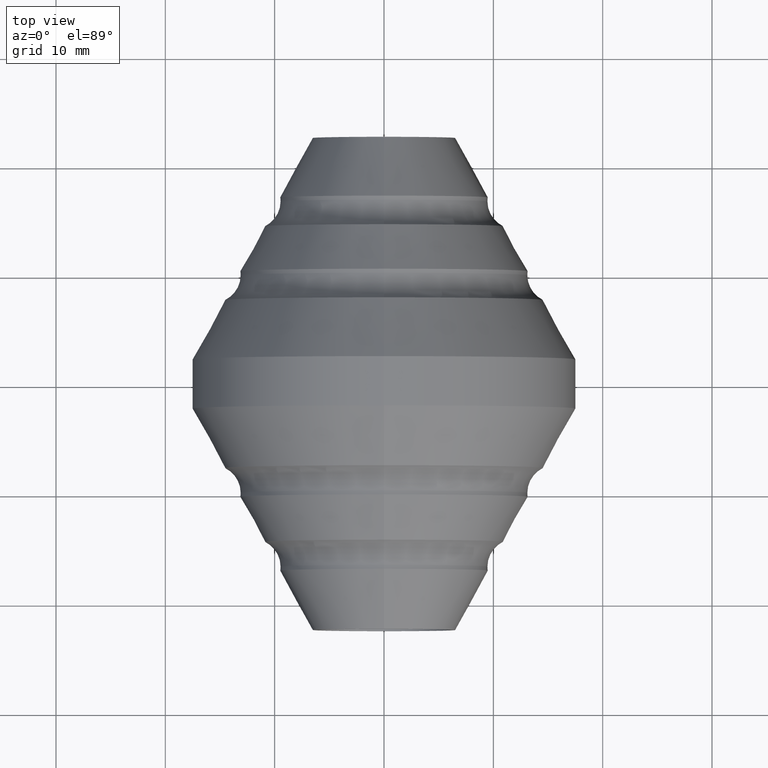
[diagram: clean part render]
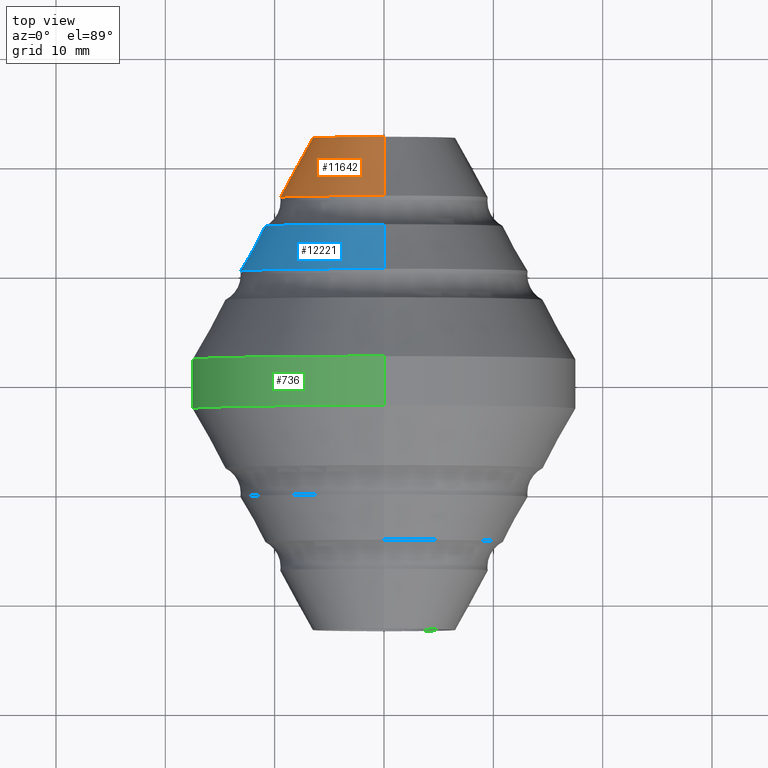
[diagram: same view with three faces highlighted in distinct colors, each labeled with its STEP entity id]
A machine part, top view with three faces highlighted in distinct colors.
Their STEP definitions:

[orange] entity #11642 — the highlighted conical surface has half-angle 28.402 deg.
#40 = CARTESIAN_POINT ( 'NONE',  ( 1.161763639293642018E-15, 17.06944925483278652, 9.486520032571897687 ) ) ;
#154 = CONICAL_SURFACE ( 'NONE', #10936, 9.486520032571897687, 0.4957065921522889052 ) ;
#295 = DIRECTION ( 'NONE',  ( 0.000000000000000000, 0.000000000000000000, -1.000000000000000000 ) ) ;
#711 = CARTESIAN_POINT ( 'NONE',  ( 0.000000000000000000, 22.50000000000000000, -6.549999999999997158 ) ) ;
#1837 = VERTEX_POINT ( 'NONE', #8548 ) ;
#2063 = VERTEX_POINT ( 'NONE', #3587 ) ;
#2959 = VECTOR ( 'NONE', #3431, 999.9999999999998863 ) ;
#3333 = ORIENTED_EDGE ( 'NONE', *, *, #14098, .T. ) ;
#3431 = DIRECTION ( 'NONE',  ( 0.000000000000000000, -0.8796328365551914219, -0.4756533116187334764 ) ) ;
#3587 = CARTESIAN_POINT ( 'NONE',  ( 9.819536463675791713E-16, 22.50000000000000000, 6.549999999999997158 ) ) ;
#3977 = DIRECTION ( 'NONE',  ( 0.000000000000000000, 0.000000000000000000, -1.000000000000000000 ) ) ;
#4341 = DIRECTION ( 'NONE',  ( 0.000000000000000000, 0.000000000000000000, -1.000000000000000000 ) ) ;
#4520 = LINE ( 'NONE', #10136, #2959 ) ;
#4792 = AXIS2_PLACEMENT_3D ( 'NONE', #6930, #13555, #295 ) ;
#4819 = VERTEX_POINT ( 'NONE', #711 ) ;
#5121 = CARTESIAN_POINT ( 'NONE',  ( 0.000000000000000000, 17.06944925483278652, 0.000000000000000000 ) ) ;
#5271 = DIRECTION ( 'NONE',  ( 5.825073055777204253E-17, -0.8796328365551914219, 0.4756533116187334764 ) ) ;
#5525 = AXIS2_PLACEMENT_3D ( 'NONE', #10635, #8259, #3977 ) ;
#5846 = LINE ( 'NONE', #9639, #8098 ) ;
#6930 = CARTESIAN_POINT ( 'NONE',  ( 0.000000000000000000, 22.50000000000000000, 0.000000000000000000 ) ) ;
#6936 = VERTEX_POINT ( 'NONE', #40 ) ;
#7865 = EDGE_CURVE ( 'NONE', #4819, #1837, #4520, .T. ) ;
#8098 = VECTOR ( 'NONE', #5271, 999.9999999999998863 ) ;
#8259 = DIRECTION ( 'NONE',  ( -0.000000000000000000, -1.000000000000000000, -0.000000000000000000 ) ) ;
#8548 = CARTESIAN_POINT ( 'NONE',  ( 0.000000000000000000, 17.06944925483278652, -9.486520032571897687 ) ) ;
#9587 = DIRECTION ( 'NONE',  ( -0.000000000000000000, -1.000000000000000000, -0.000000000000000000 ) ) ;
#9639 = CARTESIAN_POINT ( 'NONE',  ( 1.161763639293642018E-15, 17.06944925483278652, 9.486520032571897687 ) ) ;
#10136 = CARTESIAN_POINT ( 'NONE',  ( 0.000000000000000000, 17.06944925483278652, -9.486520032571897687 ) ) ;
#10635 = CARTESIAN_POINT ( 'NONE',  ( 0.000000000000000000, 17.06944925483278652, 0.000000000000000000 ) ) ;
#10899 = EDGE_CURVE ( 'NONE', #6936, #1837, #13333, .T. ) ;
#10936 = AXIS2_PLACEMENT_3D ( 'NONE', #5121, #9587, #4341 ) ;
#10976 = ORIENTED_EDGE ( 'NONE', *, *, #7865, .T. ) ;
#11437 = FACE_OUTER_BOUND ( 'NONE', #13739, .T. ) ;
#11642 = ADVANCED_FACE ( 'NONE', ( #11437 ), #154, .T. ) ;
#12990 = EDGE_CURVE ( 'NONE', #2063, #6936, #5846, .T. ) ;
#13333 = CIRCLE ( 'NONE', #5525, 9.486520032571897687 ) ;
#13555 = DIRECTION ( 'NONE',  ( -0.000000000000000000, -1.000000000000000000, -0.000000000000000000 ) ) ;
#13619 = CIRCLE ( 'NONE', #4792, 6.549999999999997158 ) ;
#13739 = EDGE_LOOP ( 'NONE', ( #13939, #3333, #10976, #14019 ) ) ;
#13939 = ORIENTED_EDGE ( 'NONE', *, *, #12990, .F. ) ;
#14019 = ORIENTED_EDGE ( 'NONE', *, *, #10899, .F. ) ;
#14098 = EDGE_CURVE ( 'NONE', #2063, #4819, #13619, .T. ) ;

[blue] entity #12221 — the highlighted conical surface has half-angle 28.402 deg.
#221 = ORIENTED_EDGE ( 'NONE', *, *, #5076, .T. ) ;
#693 = VERTEX_POINT ( 'NONE', #7054 ) ;
#859 = CARTESIAN_POINT ( 'NONE',  ( 0.000000000000000000, 10.31944925483278475, 0.000000000000000000 ) ) ;
#922 = ORIENTED_EDGE ( 'NONE', *, *, #2033, .F. ) ;
#1272 = DIRECTION ( 'NONE',  ( -0.000000000000000000, -1.000000000000000000, -0.000000000000000000 ) ) ;
#1790 = LINE ( 'NONE', #8721, #2134 ) ;
#2033 = EDGE_CURVE ( 'NONE', #7990, #11417, #12082, .T. ) ;
#2048 = CONICAL_SURFACE ( 'NONE', #9161, 13.13652003257189804, 0.4957065921522884611 ) ;
#2134 = VECTOR ( 'NONE', #14131, 1000.000000000000000 ) ;
#2815 = VECTOR ( 'NONE', #8691, 1000.000000000000000 ) ;
#3530 = CARTESIAN_POINT ( 'NONE',  ( 0.000000000000000000, 14.43055074516721348, -10.91347996742809734 ) ) ;
#5076 = EDGE_CURVE ( 'NONE', #693, #8017, #5443, .T. ) ;
#5443 = CIRCLE ( 'NONE', #11254, 10.91347996742809734 ) ;
#5776 = LINE ( 'NONE', #6083, #2815 ) ;
#6083 = CARTESIAN_POINT ( 'NONE',  ( 1.608759720982425861E-15, 10.31944925483278475, 13.13652003257189804 ) ) ;
#6282 = EDGE_CURVE ( 'NONE', #693, #7990, #5776, .T. ) ;
#6474 = EDGE_CURVE ( 'NONE', #8017, #11417, #1790, .T. ) ;
#7054 = CARTESIAN_POINT ( 'NONE',  ( 1.472637775974691892E-15, 14.43055074516721348, 10.91347996742809734 ) ) ;
#7981 = AXIS2_PLACEMENT_3D ( 'NONE', #13623, #1272, #13572 ) ;
#7990 = VERTEX_POINT ( 'NONE', #8103 ) ;
#8017 = VERTEX_POINT ( 'NONE', #3530 ) ;
#8103 = CARTESIAN_POINT ( 'NONE',  ( 1.608759720982426058E-15, 10.31944925483278475, 13.13652003257189804 ) ) ;
#8691 = DIRECTION ( 'NONE',  ( 5.825073055777199323E-17, -0.8796328365551916439, 0.4756533116187330323 ) ) ;
#8721 = CARTESIAN_POINT ( 'NONE',  ( 0.000000000000000000, 10.31944925483278475, -13.13652003257189804 ) ) ;
#9161 = AXIS2_PLACEMENT_3D ( 'NONE', #859, #11951, #9718 ) ;
#9403 = DIRECTION ( 'NONE',  ( 0.000000000000000000, 0.000000000000000000, -1.000000000000000000 ) ) ;
#9718 = DIRECTION ( 'NONE',  ( 0.000000000000000000, 0.000000000000000000, -1.000000000000000000 ) ) ;
#9853 = FACE_OUTER_BOUND ( 'NONE', #12100, .T. ) ;
#9922 = ORIENTED_EDGE ( 'NONE', *, *, #6474, .T. ) ;
#11061 = ORIENTED_EDGE ( 'NONE', *, *, #6282, .F. ) ;
#11254 = AXIS2_PLACEMENT_3D ( 'NONE', #11593, #12778, #9403 ) ;
#11417 = VERTEX_POINT ( 'NONE', #13602 ) ;
#11593 = CARTESIAN_POINT ( 'NONE',  ( 0.000000000000000000, 14.43055074516721348, 0.000000000000000000 ) ) ;
#11951 = DIRECTION ( 'NONE',  ( -0.000000000000000000, -1.000000000000000000, -0.000000000000000000 ) ) ;
#12082 = CIRCLE ( 'NONE', #7981, 13.13652003257189804 ) ;
#12100 = EDGE_LOOP ( 'NONE', ( #11061, #221, #9922, #922 ) ) ;
#12221 = ADVANCED_FACE ( 'NONE', ( #9853 ), #2048, .T. ) ;
#12778 = DIRECTION ( 'NONE',  ( -0.000000000000000000, -1.000000000000000000, -0.000000000000000000 ) ) ;
#13572 = DIRECTION ( 'NONE',  ( 0.000000000000000000, 0.000000000000000000, -1.000000000000000000 ) ) ;
#13602 = CARTESIAN_POINT ( 'NONE',  ( 0.000000000000000000, 10.31944925483278475, -13.13652003257189804 ) ) ;
#13623 = CARTESIAN_POINT ( 'NONE',  ( 0.000000000000000000, 10.31944925483278475, 0.000000000000000000 ) ) ;
#14131 = DIRECTION ( 'NONE',  ( 0.000000000000000000, -0.8796328365551916439, -0.4756533116187330323 ) ) ;

[green] entity #736 — the highlighted cylindrical surface (partial cylindrical patch) has radius 17.5 mm, axis along (-0, -1, -0).
#132 = VERTEX_POINT ( 'NONE', #10217 ) ;
#736 = ADVANCED_FACE ( 'NONE', ( #12960 ), #11586, .T. ) ;
#836 = LINE ( 'NONE', #7032, #11404 ) ;
#916 = VERTEX_POINT ( 'NONE', #9804 ) ;
#919 = CARTESIAN_POINT ( 'NONE',  ( 0.000000000000000000, 2.249999999999999556, -17.50000000000000000 ) ) ;
#1491 = LINE ( 'NONE', #7987, #8251 ) ;
#2429 = EDGE_CURVE ( 'NONE', #4870, #916, #1491, .T. ) ;
#2863 = AXIS2_PLACEMENT_3D ( 'NONE', #5191, #4160, #7326 ) ;
#3547 = DIRECTION ( 'NONE',  ( -0.000000000000000000, -1.000000000000000000, -0.000000000000000000 ) ) ;
#4144 = EDGE_CURVE ( 'NONE', #916, #132, #10833, .T. ) ;
#4160 = DIRECTION ( 'NONE',  ( 0.000000000000000000, -1.000000000000000000, 0.000000000000000000 ) ) ;
#4677 = ORIENTED_EDGE ( 'NONE', *, *, #4144, .F. ) ;
#4709 = DIRECTION ( 'NONE',  ( 0.000000000000000000, 0.000000000000000000, -1.000000000000000000 ) ) ;
#4870 = VERTEX_POINT ( 'NONE', #6461 ) ;
#5148 = CARTESIAN_POINT ( 'NONE',  ( 0.000000000000000000, 0.000000000000000000, 0.000000000000000000 ) ) ;
#5191 = CARTESIAN_POINT ( 'NONE',  ( 0.000000000000000000, -2.249999999999999556, 0.000000000000000000 ) ) ;
#6461 = CARTESIAN_POINT ( 'NONE',  ( 2.143131898507868248E-15, 2.249999999999999556, 17.50000000000000000 ) ) ;
#7032 = CARTESIAN_POINT ( 'NONE',  ( 0.000000000000000000, 0.000000000000000000, -17.50000000000000000 ) ) ;
#7326 = DIRECTION ( 'NONE',  ( 0.000000000000000000, 0.000000000000000000, -1.000000000000000000 ) ) ;
#7350 = EDGE_CURVE ( 'NONE', #4870, #11699, #13043, .T. ) ;
#7975 = EDGE_LOOP ( 'NONE', ( #13414, #12233, #12287, #4677 ) ) ;
#7987 = CARTESIAN_POINT ( 'NONE',  ( 2.143131898507868248E-15, 0.000000000000000000, 17.50000000000000000 ) ) ;
#8153 = DIRECTION ( 'NONE',  ( -0.000000000000000000, -1.000000000000000000, -0.000000000000000000 ) ) ;
#8251 = VECTOR ( 'NONE', #10167, 1000.000000000000000 ) ;
#8995 = CARTESIAN_POINT ( 'NONE',  ( 0.000000000000000000, 2.249999999999999556, 0.000000000000000000 ) ) ;
#9804 = CARTESIAN_POINT ( 'NONE',  ( 2.143131898507868248E-15, -2.249999999999999556, 17.50000000000000000 ) ) ;
#10167 = DIRECTION ( 'NONE',  ( -0.000000000000000000, -1.000000000000000000, -0.000000000000000000 ) ) ;
#10217 = CARTESIAN_POINT ( 'NONE',  ( 0.000000000000000000, -2.249999999999999556, -17.50000000000000000 ) ) ;
#10825 = AXIS2_PLACEMENT_3D ( 'NONE', #5148, #12801, #12896 ) ;
#10833 = CIRCLE ( 'NONE', #2863, 17.50000000000000000 ) ;
#11404 = VECTOR ( 'NONE', #8153, 1000.000000000000000 ) ;
#11586 = CYLINDRICAL_SURFACE ( 'NONE', #10825, 17.50000000000000000 ) ;
#11699 = VERTEX_POINT ( 'NONE', #919 ) ;
#12233 = ORIENTED_EDGE ( 'NONE', *, *, #7350, .T. ) ;
#12287 = ORIENTED_EDGE ( 'NONE', *, *, #12866, .T. ) ;
#12801 = DIRECTION ( 'NONE',  ( -0.000000000000000000, -1.000000000000000000, -0.000000000000000000 ) ) ;
#12866 = EDGE_CURVE ( 'NONE', #11699, #132, #836, .T. ) ;
#12896 = DIRECTION ( 'NONE',  ( 0.000000000000000000, 0.000000000000000000, -1.000000000000000000 ) ) ;
#12960 = FACE_OUTER_BOUND ( 'NONE', #7975, .T. ) ;
#13043 = CIRCLE ( 'NONE', #13206, 17.50000000000000000 ) ;
#13206 = AXIS2_PLACEMENT_3D ( 'NONE', #8995, #3547, #4709 ) ;
#13414 = ORIENTED_EDGE ( 'NONE', *, *, #2429, .F. ) ;